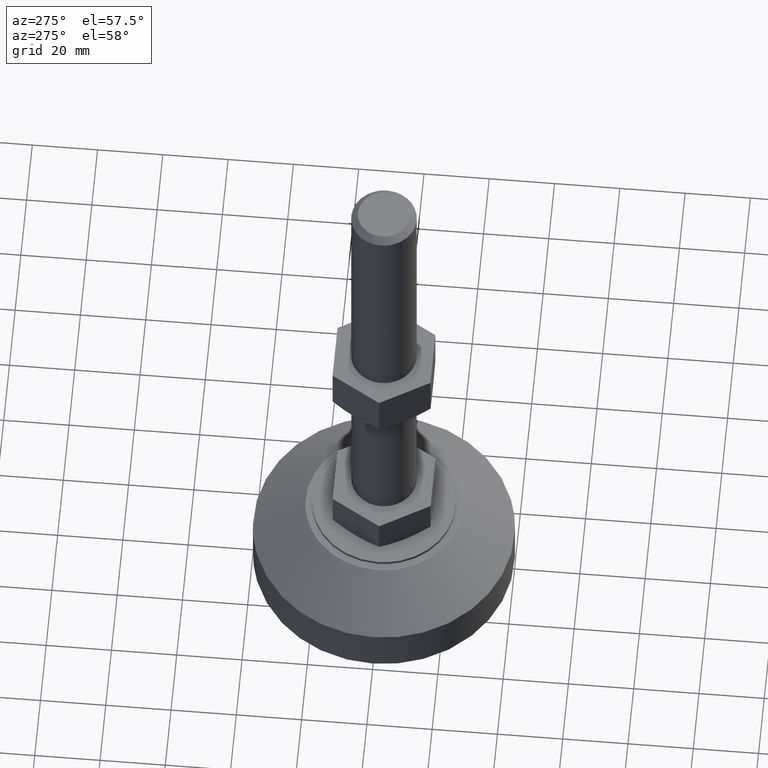
[diagram: clean part render]
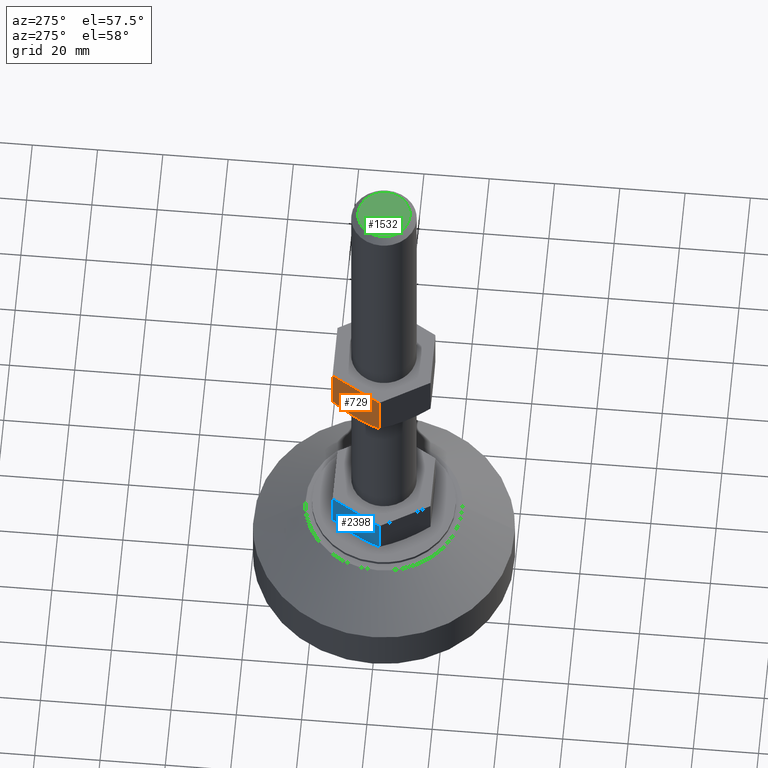
[diagram: same view with three faces highlighted in distinct colors, each labeled with its STEP entity id]
A machine part, auxiliary view with three faces highlighted in distinct colors.
Their STEP definitions:

[orange] entity #729 — the highlighted face is a freeform B-spline surface patch.
#194=CARTESIAN_POINT('',(-12.990381056798160,7.500000000018120,96.500000000000000));
#195=VERTEX_POINT('',#194);
#306=CARTESIAN_POINT('',(-8.660254037844611,15.000000000000650,97.839745962164798));
#307=VERTEX_POINT('',#306);
#308=CARTESIAN_POINT('',(-8.660254037844599,15.000000000000670,97.839745962164642));
#309=CARTESIAN_POINT('',(-9.367281759440894,13.775392063836231,97.431543316767431));
#310=CARTESIAN_POINT('',(-10.079464158775901,12.541855963931690,97.095110476245850));
#311=CARTESIAN_POINT('',(-11.158877247785741,10.672257651411790,96.745558985831792));
#312=CARTESIAN_POINT('',(-11.520542644587890,10.045834808810900,96.654953438834340));
#313=CARTESIAN_POINT('',(-12.248085348084750,8.785693881678323,96.532385768631585));
#314=CARTESIAN_POINT('',(-12.613966294297120,8.151969493317116,96.500474319296842));
#315=CARTESIAN_POINT('',(-12.984863898330790,7.509555998725236,96.500001757458847));
#316=CARTESIAN_POINT('',(-12.987622414444409,7.504778108662958,96.500000000562821));
#317=CARTESIAN_POINT('',(-12.990381056818990,7.499999999910266,96.500000001628308));
#318=B_SPLINE_CURVE_WITH_KNOTS('',3,(#308,#309,#310,#311,#312,#313,#314,#315,#316,#317),.UNSPECIFIED.,.F.,.U.,(4,2,2,2,4),(0.0,0.250000000000000,0.375000000000000,0.499999999999999,0.500936598769630),.UNSPECIFIED.);
#319=EDGE_CURVE('',#307,#195,#318,.T.);
#552=CARTESIAN_POINT('',(-17.320508075689599,0.0,97.839745962164798));
#553=VERTEX_POINT('',#552);
#567=CARTESIAN_POINT('',(-12.990381056798160,7.500000000018120,96.500000000000000));
#568=CARTESIAN_POINT('',(-13.079665642688729,7.345354560851141,96.500000036116290));
#569=CARTESIAN_POINT('',(-13.169082489209730,7.190480039624171,96.501841569814601));
#570=CARTESIAN_POINT('',(-13.350949418786710,6.875477277380279,96.509347877224613));
#571=CARTESIAN_POINT('',(-13.443259380414680,6.715591733795917,96.515126012679630));
#572=CARTESIAN_POINT('',(-13.719504512123770,6.237121130332219,96.538242611801408));
#573=CARTESIAN_POINT('',(-13.903028081745809,5.919248983360433,96.561379370471784));
#574=CARTESIAN_POINT('',(-14.451762310556960,4.968813419207399,96.652963666495907));
#575=CARTESIAN_POINT('',(-14.815132196112280,4.339438315485091,96.743637065374159));
#576=CARTESIAN_POINT('',(-15.898772554322569,2.462518157932737,97.093768839119150));
#577=CARTESIAN_POINT('',(-16.612598936100511,1.226134596910283,97.431034429852119));
#578=CARTESIAN_POINT('',(-17.320508075689450,-1.153041E-013,97.839745962164670));
#579=B_SPLINE_CURVE_WITH_KNOTS('',3,(#567,#568,#569,#570,#571,#572,#573,#574,#575,#576,#577,#578),.UNSPECIFIED.,.F.,.U.,(4,2,2,2,2,4),(0.500936598791471,0.531249999999999,0.562499999999999,0.625000000000000,0.750000000000000,1.0),.UNSPECIFIED.);
#580=EDGE_CURVE('',#195,#553,#579,.T.);
#592=CARTESIAN_POINT('',(-8.660254037845089,14.999999999999821,112.500000000000000));
#593=VERTEX_POINT('',#592);
#599=CARTESIAN_POINT('',(-17.320508075689450,-5.684342E-014,112.500000000000000));
#600=VERTEX_POINT('',#599);
#601=CARTESIAN_POINT('',(-8.660254037845089,14.999999999999821,112.500000000000000));
#602=CARTESIAN_POINT('',(-17.320508075689450,-5.684342E-014,112.500000000000000));
#603=QUASI_UNIFORM_CURVE('',1,(#601,#602),.UNSPECIFIED.,.F.,.U.);
#604=EDGE_CURVE('',#593,#600,#603,.T.);
#701=CARTESIAN_POINT('',(-17.320508075689599,0.0,97.839745962164798));
#702=CARTESIAN_POINT('',(-17.320508075689450,-5.684342E-014,112.500000000000000));
#703=QUASI_UNIFORM_CURVE('',1,(#701,#702),.UNSPECIFIED.,.F.,.U.);
#704=EDGE_CURVE('',#553,#600,#703,.T.);
#713=CARTESIAN_POINT('',(-8.227674365439512,15.749249970927780,95.700800031011113));
#714=CARTESIAN_POINT('',(-17.753087980380649,-0.749250373258577,95.700800031011113));
#715=CARTESIAN_POINT('',(-8.227674365439512,15.749249970927780,113.299200398142300));
#716=CARTESIAN_POINT('',(-17.753087980380649,-0.749250373258577,113.299200398142300));
#717=B_SPLINE_SURFACE_WITH_KNOTS('',1,1,((#713,#715),(#714,#716)),.UNSPECIFIED.,.F.,.F.,.U.,(2,2),(2,2),(0.0,19.050827229882259),(0.0,17.598400367131219),.UNSPECIFIED.);
#718=CARTESIAN_POINT('',(-8.660254037844611,15.000000000000650,97.839745962164798));
#719=CARTESIAN_POINT('',(-8.660254037845089,14.999999999999821,112.500000000000000));
#720=QUASI_UNIFORM_CURVE('',1,(#718,#719),.UNSPECIFIED.,.F.,.U.);
#721=EDGE_CURVE('',#307,#593,#720,.T.);
#722=ORIENTED_EDGE('',*,*,#721,.F.);
#723=ORIENTED_EDGE('',*,*,#319,.T.);
#724=ORIENTED_EDGE('',*,*,#580,.T.);
#725=ORIENTED_EDGE('',*,*,#704,.T.);
#726=ORIENTED_EDGE('',*,*,#604,.F.);
#727=EDGE_LOOP('',(#722,#723,#724,#725,#726));
#728=FACE_OUTER_BOUND('',#727,.T.);
#729=ADVANCED_FACE('',(#728),#717,.T.);

[blue] entity #2398 — the highlighted face is a freeform B-spline surface patch.
#2207=CARTESIAN_POINT('',(-8.660254037845210,15.0,42.500000000000000));
#2208=VERTEX_POINT('',#2207);
#2214=CARTESIAN_POINT('',(-17.320508075689450,-5.684342E-014,42.500000000000000));
#2215=VERTEX_POINT('',#2214);
#2216=CARTESIAN_POINT('',(-8.660254037845210,15.0,42.500000000000000));
#2217=CARTESIAN_POINT('',(-17.320508075689450,-5.684342E-014,42.500000000000000));
#2218=QUASI_UNIFORM_CURVE('',1,(#2216,#2217),.UNSPECIFIED.,.F.,.U.);
#2219=EDGE_CURVE('',#2208,#2215,#2218,.T.);
#2307=CARTESIAN_POINT('',(-8.660254037845132,14.999999999999760,30.839745962165050));
#2308=VERTEX_POINT('',#2307);
#2326=CARTESIAN_POINT('',(-8.660254037845210,15.0,42.500000000000000));
#2327=CARTESIAN_POINT('',(-8.660254037845132,14.999999999999760,30.839745962165050));
#2328=QUASI_UNIFORM_CURVE('',1,(#2326,#2327),.UNSPECIFIED.,.F.,.U.);
#2329=EDGE_CURVE('',#2208,#2308,#2328,.T.);
#2352=CARTESIAN_POINT('',(-17.753087748094501,-0.749249970927160,28.850650025196529));
#2353=CARTESIAN_POINT('',(-8.227674133153853,15.749250373258340,28.850650025196529));
#2354=CARTESIAN_POINT('',(-17.753087748094501,-0.749249970927160,43.149350323490637));
#2355=CARTESIAN_POINT('',(-8.227674133153853,15.749250373258340,43.149350323490637));
#2356=B_SPLINE_SURFACE_WITH_KNOTS('',1,1,((#2352,#2354),(#2353,#2355)),.UNSPECIFIED.,.F.,.F.,.U.,(2,2),(2,2),(0.0,19.050827229881271),(0.0,14.298700298294120),.UNSPECIFIED.);
#2357=CARTESIAN_POINT('',(-17.320508075688949,0.0,30.839745962165050));
#2358=VERTEX_POINT('',#2357);
#2359=CARTESIAN_POINT('',(-12.990381056767021,7.500000000000309,29.500000000000000));
#2360=VERTEX_POINT('',#2359);
#2361=CARTESIAN_POINT('',(-17.320508075688949,0.0,30.839745962165050));
#2362=CARTESIAN_POINT('',(-16.613480354093049,1.224607936164515,30.431543316767730));
#2363=CARTESIAN_POINT('',(-15.901297954758110,2.458144036068946,30.095110476246219));
#2364=CARTESIAN_POINT('',(-14.821884865748350,4.327742348588700,29.745558985832201));
#2365=CARTESIAN_POINT('',(-14.460219468946219,4.954165191189533,29.654953438834749));
#2366=CARTESIAN_POINT('',(-13.732676765449430,6.214306118322011,29.532385768631979));
#2367=CARTESIAN_POINT('',(-13.366795819237080,6.848030506683167,29.500474319297261));
#2368=CARTESIAN_POINT('',(-12.995898215203390,7.490444001275081,29.500001757459248));
#2369=CARTESIAN_POINT('',(-12.993139699089729,7.495221891337440,29.500000000563219));
#2370=CARTESIAN_POINT('',(-12.990381056715099,7.500000000090215,29.500000001628720));
#2371=B_SPLINE_CURVE_WITH_KNOTS('',3,(#2361,#2362,#2363,#2364,#2365,#2366,#2367,#2368,#2369,#2370),.UNSPECIFIED.,.F.,.U.,(4,2,2,2,4),(0.0,0.249999999999999,0.374999999999999,0.499999999999999,0.500936598769645),.UNSPECIFIED.);
#2372=EDGE_CURVE('',#2358,#2360,#2371,.T.);
#2373=ORIENTED_EDGE('',*,*,#2372,.F.);
#2374=CARTESIAN_POINT('',(-17.320508075689450,-5.684342E-014,42.500000000000000));
#2375=CARTESIAN_POINT('',(-17.320508075688949,0.0,30.839745962165050));
#2376=QUASI_UNIFORM_CURVE('',1,(#2374,#2375),.UNSPECIFIED.,.F.,.U.);
#2377=EDGE_CURVE('',#2215,#2358,#2376,.T.);
#2378=ORIENTED_EDGE('',*,*,#2377,.F.);
#2379=ORIENTED_EDGE('',*,*,#2219,.F.);
#2380=ORIENTED_EDGE('',*,*,#2329,.T.);
#2381=CARTESIAN_POINT('',(-12.990381056767021,7.500000000000309,29.500000000000000));
#2382=CARTESIAN_POINT('',(-12.901096470845420,7.654645439149244,29.500000036116688));
#2383=CARTESIAN_POINT('',(-12.811679624324469,7.809519960376120,29.501841569815010));
#2384=CARTESIAN_POINT('',(-12.629812694747541,8.124522722619901,29.509347877224990));
#2385=CARTESIAN_POINT('',(-12.537502733119570,8.284408266204281,29.515126012680021));
#2386=CARTESIAN_POINT('',(-12.261257601410509,8.762878869667940,29.538242611801788));
#2387=CARTESIAN_POINT('',(-12.077734031788470,9.080751016639701,29.561379370472149));
#2388=CARTESIAN_POINT('',(-11.528999802977371,10.031186580792660,29.652963666496241));
#2389=CARTESIAN_POINT('',(-11.165629917422081,10.660561684514921,29.743637065374500));
#2390=CARTESIAN_POINT('',(-10.081989559211880,12.537481842067130,30.093768839119441));
#2391=CARTESIAN_POINT('',(-9.368163177433990,13.773865403089481,30.431034429852328));
#2392=CARTESIAN_POINT('',(-8.660254037845112,14.999999999999780,30.839745962164859));
#2393=B_SPLINE_CURVE_WITH_KNOTS('',3,(#2381,#2382,#2383,#2384,#2385,#2386,#2387,#2388,#2389,#2390,#2391,#2392),.UNSPECIFIED.,.F.,.U.,(4,2,2,2,2,4),(0.500936598791487,0.531249999999999,0.562499999999999,0.624999999999999,0.749999999999999,1.0),.UNSPECIFIED.);
#2394=EDGE_CURVE('',#2360,#2308,#2393,.T.);
#2395=ORIENTED_EDGE('',*,*,#2394,.F.);
#2396=EDGE_LOOP('',(#2373,#2378,#2379,#2380,#2395));
#2397=FACE_OUTER_BOUND('',#2396,.T.);
#2398=ADVANCED_FACE('',(#2397),#2356,.F.);

[green] entity #1532 — the highlighted face is a freeform B-spline surface patch.
#1461=CARTESIAN_POINT('',(8.799199968989457,-8.799002948277199,192.500000000000000));
#1462=CARTESIAN_POINT('',(-8.799200398142874,-8.799002948277199,192.500000000000000));
#1463=CARTESIAN_POINT('',(8.799199968989457,8.799002805226056,192.500000000000000));
#1464=CARTESIAN_POINT('',(-8.799200398142874,8.799002805226056,192.500000000000000));
#1465=B_SPLINE_SURFACE_WITH_KNOTS('',1,1,((#1461,#1463),(#1462,#1464)),.UNSPECIFIED.,.F.,.F.,.U.,(2,2),(2,2),(0.0,17.598400367132331),(0.0,17.598005753503259),.UNSPECIFIED.);
#1466=CARTESIAN_POINT('',(0.488388317875189,-7.985078387488371,192.499999999789790));
#1467=VERTEX_POINT('',#1466);
#1468=CARTESIAN_POINT('',(-8.000000000000487,0.0,192.500000000000000));
#1469=VERTEX_POINT('',#1468);
#1470=CARTESIAN_POINT('',(0.488388317875189,-7.985078387488371,192.499999999789790));
#1471=CARTESIAN_POINT('',(0.244422107195337,-8.000000000207271,192.499999999792780));
#1472=CARTESIAN_POINT('',(1.246536E-011,-8.000000000204064,192.499999999795990));
#1473=CARTESIAN_POINT('',(-7.999999999994451,-8.000000000099172,192.499999999901150));
#1474=CARTESIAN_POINT('',(-8.000000000000487,0.0,192.500000000000000));
#1482=(BOUNDED_CURVE()B_SPLINE_CURVE(2,(#1470,#1471,#1472,#1473,#1474),.UNSPECIFIED.,.F.,.U.)B_SPLINE_CURVE_WITH_KNOTS((3,2,3),(0.739332962207752,0.750000000000000,1.0),.UNSPECIFIED.)CURVE()GEOMETRIC_REPRESENTATION_ITEM()RATIONAL_B_SPLINE_CURVE((0.976072041599869,0.987502787863295,1.0,0.707106781186548,1.0))REPRESENTATION_ITEM(''));
#1483=EDGE_CURVE('',#1467,#1469,#1482,.T.);
#1484=ORIENTED_EDGE('',*,*,#1483,.F.);
#1485=CARTESIAN_POINT('',(8.000000000000513,0.0,192.500000000000000));
#1486=VERTEX_POINT('',#1485);
#1487=CARTESIAN_POINT('',(8.000000000000513,0.0,192.500000000000000));
#1488=CARTESIAN_POINT('',(8.000000000006930,-7.525648533855780,192.499999999894840));
#1489=CARTESIAN_POINT('',(0.488388317875189,-7.985078387488371,192.499999999789790));
#1497=(BOUNDED_CURVE()B_SPLINE_CURVE(2,(#1487,#1488,#1489),.UNSPECIFIED.,.F.,.U.)B_SPLINE_CURVE_WITH_KNOTS((3,3),(0.500000000000000,0.739332962207752),.UNSPECIFIED.)CURVE()GEOMETRIC_REPRESENTATION_ITEM()RATIONAL_B_SPLINE_CURVE((1.0,0.719603993323253,0.976072041599869))REPRESENTATION_ITEM(''));
#1498=EDGE_CURVE('',#1486,#1467,#1497,.T.);
#1499=ORIENTED_EDGE('',*,*,#1498,.F.);
#1500=CARTESIAN_POINT('',(-0.488388317875164,7.985078387488381,192.499999999789790));
#1501=VERTEX_POINT('',#1500);
#1502=CARTESIAN_POINT('',(-0.488388317875164,7.985078387488381,192.499999999789820));
#1503=CARTESIAN_POINT('',(-0.244422107195310,8.000000000207280,192.499999999792860));
#1504=CARTESIAN_POINT('',(-1.243726E-011,8.000000000204075,192.499999999796100));
#1505=CARTESIAN_POINT('',(7.999999999994478,8.000000000099178,192.499999999901150));
#1506=CARTESIAN_POINT('',(8.000000000000513,0.0,192.500000000000000));
#1514=(BOUNDED_CURVE()B_SPLINE_CURVE(2,(#1502,#1503,#1504,#1505,#1506),.UNSPECIFIED.,.F.,.U.)B_SPLINE_CURVE_WITH_KNOTS((3,2,3),(0.239332962207752,0.250000000000000,0.500000000000000),.UNSPECIFIED.)CURVE()GEOMETRIC_REPRESENTATION_ITEM()RATIONAL_B_SPLINE_CURVE((0.976072041599869,0.987502787863295,1.0,0.707106781186548,1.0))REPRESENTATION_ITEM(''));
#1515=EDGE_CURVE('',#1501,#1486,#1514,.T.);
#1516=ORIENTED_EDGE('',*,*,#1515,.F.);
#1517=CARTESIAN_POINT('',(-8.000000000000487,0.0,192.500000000000000));
#1518=CARTESIAN_POINT('',(-8.000000000006901,7.525648533855782,192.499999999894840));
#1519=CARTESIAN_POINT('',(-0.488388317875164,7.985078387488381,192.499999999789820));
#1527=(BOUNDED_CURVE()B_SPLINE_CURVE(2,(#1517,#1518,#1519),.UNSPECIFIED.,.F.,.U.)B_SPLINE_CURVE_WITH_KNOTS((3,3),(0.0,0.239332962207752),.UNSPECIFIED.)CURVE()GEOMETRIC_REPRESENTATION_ITEM()RATIONAL_B_SPLINE_CURVE((1.0,0.719603993323253,0.976072041599869))REPRESENTATION_ITEM(''));
#1528=EDGE_CURVE('',#1469,#1501,#1527,.T.);
#1529=ORIENTED_EDGE('',*,*,#1528,.F.);
#1530=EDGE_LOOP('',(#1484,#1499,#1516,#1529));
#1531=FACE_OUTER_BOUND('',#1530,.T.);
#1532=ADVANCED_FACE('',(#1531),#1465,.F.);